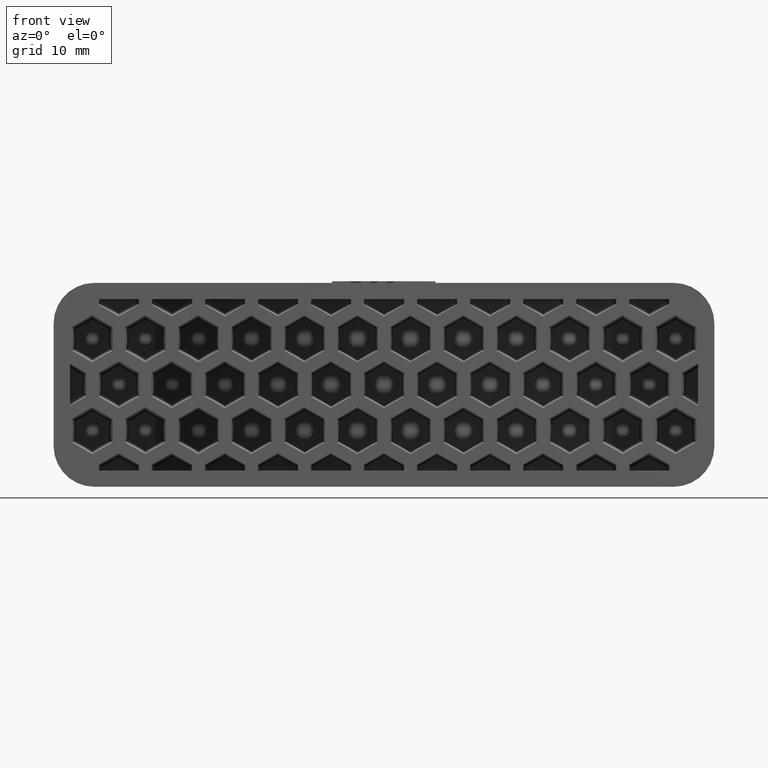
[diagram: clean part render]
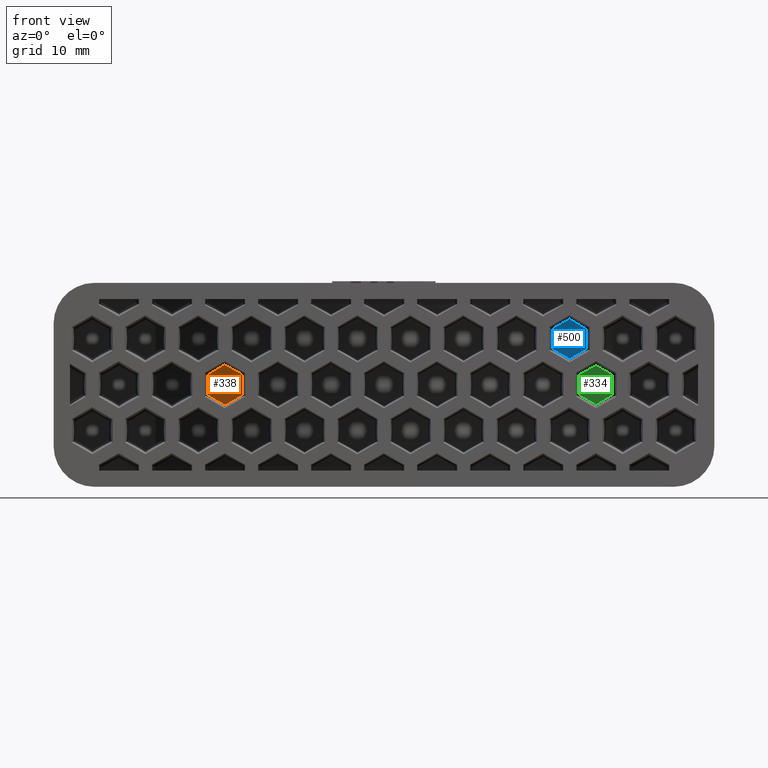
[diagram: same view with three faces highlighted in distinct colors, each labeled with its STEP entity id]
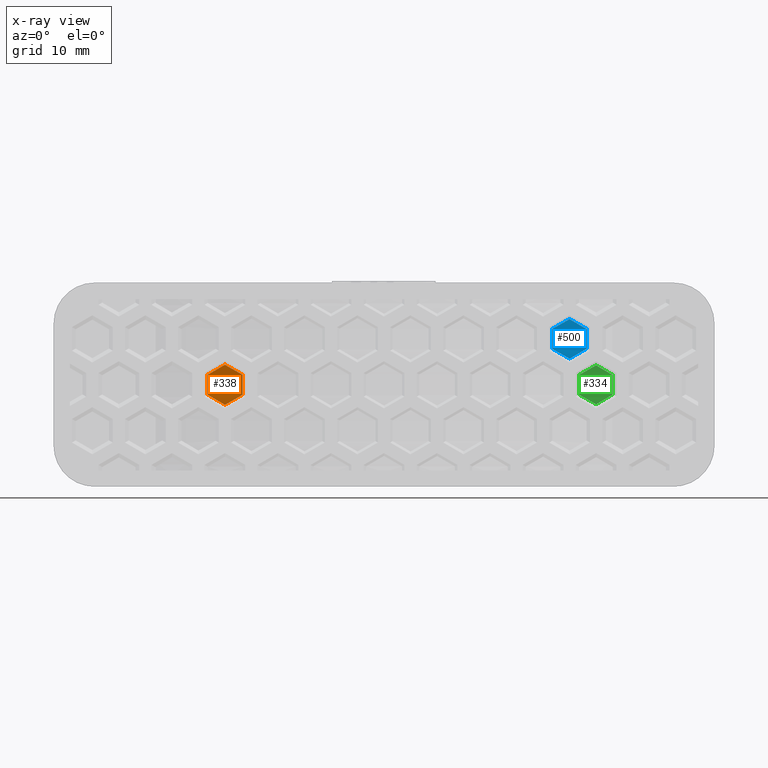
[diagram: x-ray of the same camera — body ghosted, the three highlighted faces saturated]
A machine part, front view with three faces highlighted in distinct colors.
The next image is the same camera in x-ray (body ghosted, the three faces saturated) — at least one of them is partly hidden behind the body in this view.
Their STEP definitions:

[orange] entity #338 — the highlighted cylindrical surface (partial cylindrical patch) has radius 48.05 mm, axis along (0, 0, -1).
#338 = ADVANCED_FACE( '', ( #1126 ), #1127, .T. );
#1126 = FACE_OUTER_BOUND( '', #2110, .T. );
#1127 = CYLINDRICAL_SURFACE( '', #2111, 48.0500000000000 );
#2110 = EDGE_LOOP( '', ( #4734, #4735, #4736, #4737, #4738, #4739 ) );
#2111 = AXIS2_PLACEMENT_3D( '', #4740, #4741, #4742 );
#4734 = ORIENTED_EDGE( '', *, *, #7014, .F. );
#4735 = ORIENTED_EDGE( '', *, *, #7012, .F. );
#4736 = ORIENTED_EDGE( '', *, *, #7010, .F. );
#4737 = ORIENTED_EDGE( '', *, *, #7008, .F. );
#4738 = ORIENTED_EDGE( '', *, *, #7006, .F. );
#4739 = ORIENTED_EDGE( '', *, *, #7003, .F. );
#4740 = CARTESIAN_POINT( '', ( 0.000000000000000, 65.0500000000000, -10.5000000000000 ) );
#4741 = DIRECTION( '', ( 0.000000000000000, 0.000000000000000, -1.00000000000000 ) );
#4742 = DIRECTION( '', ( -1.00000000000000, 6.93889390390723E-017, 0.000000000000000 ) );
#7003 = EDGE_CURVE( '', #8762, #8763, #8764, .T. );
#7006 = EDGE_CURVE( '', #8763, #8767, #8768, .T. );
#7008 = EDGE_CURVE( '', #8767, #8770, #8771, .T. );
#7010 = EDGE_CURVE( '', #8770, #8773, #8774, .T. );
#7012 = EDGE_CURVE( '', #8773, #8776, #8777, .T. );
#7014 = EDGE_CURVE( '', #8776, #8762, #8779, .F. );
#8762 = VERTEX_POINT( '', #11352 );
#8763 = VERTEX_POINT( '', #11353 );
#8764 = ELLIPSE( '', #11354, 55.4918125409537, 48.0500000000000 );
#8767 = VERTEX_POINT( '', #11359 );
#8768 = ELLIPSE( '', #11360, 55.4918125409537, 48.0500000000000 );
#8770 = VERTEX_POINT( '', #11363 );
#8771 = LINE( '', #11364, #11365 );
#8773 = VERTEX_POINT( '', #11368 );
#8774 = ELLIPSE( '', #11369, 55.4918125409537, 48.0500000000000 );
#8776 = VERTEX_POINT( '', #11372 );
#8777 = ELLIPSE( '', #11373, 55.4918125409537, 48.0500000000000 );
#8779 = LINE( '', #11376, #11377 );
#11352 = CARTESIAN_POINT( '', ( -17.3533435182737, 20.2430366043760, -1.23937269758235 ) );
#11353 = CARTESIAN_POINT( '', ( -19.5000000000000, 21.1347122291109, -2.46077334046903 ) );
#11354 = AXIS2_PLACEMENT_3D( '', #13255, #13256, #13257 );
#11359 = CARTESIAN_POINT( '', ( -21.6136233040047, 22.1355060885884, -1.22030098353262 ) );
#11360 = AXIS2_PLACEMENT_3D( '', #13260, #13261, #13262 );
#11363 = CARTESIAN_POINT( '', ( -21.6136233040047, 22.1355060885884, 1.22030098353259 ) );
#11364 = CARTESIAN_POINT( '', ( -21.6136233040047, 22.1355060885884, -10.5000000000000 ) );
#11365 = VECTOR( '', #13264, 1000.00000000000 );
#11368 = CARTESIAN_POINT( '', ( -19.5000000000000, 21.1347122291109, 2.46077334046903 ) );
#11369 = AXIS2_PLACEMENT_3D( '', #13266, #13267, #13268 );
#11372 = CARTESIAN_POINT( '', ( -17.3533435182737, 20.2430366043760, 1.23937269758236 ) );
#11373 = AXIS2_PLACEMENT_3D( '', #13270, #13271, #13272 );
#11376 = CARTESIAN_POINT( '', ( -17.3533435182737, 20.2430366043760, -10.5000000000000 ) );
#11377 = VECTOR( '', #13274, 1000.00000000000 );
#13255 = CARTESIAN_POINT( '', ( 0.000000000000000, 65.0500000000000, 9.68268590844681 ) );
#13256 = DIRECTION( '', ( 0.499923847578195, 0.0174524064372835, -0.865893503920754 ) );
#13257 = DIRECTION( '', ( 0.865366346075250, 0.0302100515148758, 0.500228387706894 ) );
#13260 = CARTESIAN_POINT( '', ( 0.000000000000000, 65.0500000000000, -12.8339745899486 ) );
#13261 = DIRECTION( '', ( -0.499923847578196, 0.0174524064372835, -0.865893503920754 ) );
#13262 = DIRECTION( '', ( -0.865366346075250, 0.0302100515148758, 0.500228387706895 ) );
#13264 = DIRECTION( '', ( 0.000000000000000, 0.000000000000000, 1.00000000000000 ) );
#13266 = CARTESIAN_POINT( '', ( 0.000000000000000, 65.0500000000000, 12.8339745899486 ) );
#13267 = DIRECTION( '', ( -0.499923847578195, 0.0174524064372835, 0.865893503920754 ) );
#13268 = DIRECTION( '', ( 0.865366346075250, -0.0302100515148758, 0.500228387706894 ) );
#13270 = CARTESIAN_POINT( '', ( 0.000000000000000, 65.0500000000000, -9.68268590844682 ) );
#13271 = DIRECTION( '', ( 0.499923847578196, 0.0174524064372835, 0.865893503920754 ) );
#13272 = DIRECTION( '', ( -0.865366346075250, -0.0302100515148758, 0.500228387706894 ) );
#13274 = DIRECTION( '', ( 0.000000000000000, 0.000000000000000, 1.00000000000000 ) );

[blue] entity #500 — the highlighted cylindrical surface (partial cylindrical patch) has radius 48.05 mm, axis along (0, 0, -1).
#500 = ADVANCED_FACE( '', ( #1450 ), #1451, .T. );
#1450 = FACE_OUTER_BOUND( '', #2434, .T. );
#1451 = CYLINDRICAL_SURFACE( '', #2435, 48.0500000000000 );
#2434 = EDGE_LOOP( '', ( #5931, #5932, #5933, #5934, #5935, #5936 ) );
#2435 = AXIS2_PLACEMENT_3D( '', #5937, #5938, #5939 );
#5931 = ORIENTED_EDGE( '', *, *, #6952, .F. );
#5932 = ORIENTED_EDGE( '', *, *, #6950, .F. );
#5933 = ORIENTED_EDGE( '', *, *, #6948, .F. );
#5934 = ORIENTED_EDGE( '', *, *, #6946, .F. );
#5935 = ORIENTED_EDGE( '', *, *, #6944, .F. );
#5936 = ORIENTED_EDGE( '', *, *, #6941, .F. );
#5937 = CARTESIAN_POINT( '', ( 0.000000000000000, 65.0500000000000, -10.5000000000000 ) );
#5938 = DIRECTION( '', ( 0.000000000000000, 0.000000000000000, -1.00000000000000 ) );
#5939 = DIRECTION( '', ( -1.00000000000000, 6.93889390390723E-017, 0.000000000000000 ) );
#6941 = EDGE_CURVE( '', #8668, #8669, #8670, .T. );
#6944 = EDGE_CURVE( '', #8669, #8673, #8674, .T. );
#6946 = EDGE_CURVE( '', #8673, #8676, #8677, .T. );
#6948 = EDGE_CURVE( '', #8676, #8679, #8680, .T. );
#6950 = EDGE_CURVE( '', #8679, #8682, #8683, .T. );
#6952 = EDGE_CURVE( '', #8682, #8668, #8685, .F. );
#8668 = VERTEX_POINT( '', #11216 );
#8669 = VERTEX_POINT( '', #11217 );
#8670 = ELLIPSE( '', #11218, 55.4918125409537, 48.0500000000000 );
#8673 = VERTEX_POINT( '', #11223 );
#8674 = ELLIPSE( '', #11224, 55.4918125409537, 48.0500000000000 );
#8676 = VERTEX_POINT( '', #11227 );
#8677 = LINE( '', #11228, #11229 );
#8679 = VERTEX_POINT( '', #11232 );
#8680 = ELLIPSE( '', #11233, 55.4918125409537, 48.0500000000000 );
#8682 = VERTEX_POINT( '', #11236 );
#8683 = ELLIPSE( '', #11237, 55.4918125409537, 48.0500000000000 );
#8685 = LINE( '', #11240, #11241 );
#11216 = CARTESIAN_POINT( '', ( 24.8325743275852, 23.9143007563387, 4.42679027596013 ) );
#11217 = CARTESIAN_POINT( '', ( 22.7500000000000, 22.7269566311684, 3.20048406375355 ) );
#11218 = AXIS2_PLACEMENT_3D( '', #13153, #13154, #13155 );
#11223 = CARTESIAN_POINT( '', ( 20.6279564710831, 21.6531117264486, 4.40400272194659 ) );
#11224 = AXIS2_PLACEMENT_3D( '', #13158, #13159, #13160 );
#11227 = CARTESIAN_POINT( '', ( 20.6279564710831, 21.6531117264486, 6.85432752725111 ) );
#11228 = CARTESIAN_POINT( '', ( 20.6279564710831, 21.6531117264486, -10.5000000000000 ) );
#11229 = VECTOR( '', #13162, 1000.00000000000 );
#11232 = CARTESIAN_POINT( '', ( 22.7500000000000, 22.7269566311684, 8.05784618544415 ) );
#11233 = AXIS2_PLACEMENT_3D( '', #13164, #13165, #13166 );
#11236 = CARTESIAN_POINT( '', ( 24.8325743275852, 23.9143007563387, 6.83153997323756 ) );
#11237 = AXIS2_PLACEMENT_3D( '', #13168, #13169, #13170 );
#11240 = CARTESIAN_POINT( '', ( 24.8325743275852, 23.9143007563387, -10.5000000000000 ) );
#11241 = VECTOR( '', #13172, 1000.00000000000 );
#13153 = CARTESIAN_POINT( '', ( 0.000000000000000, 65.0500000000000, -9.08119784021602 ) );
#13154 = DIRECTION( '', ( 0.499923847578195, 0.0174524064372835, -0.865893503920754 ) );
#13155 = DIRECTION( '', ( 0.865366346075250, 0.0302100515148758, 0.500228387706894 ) );
#13158 = CARTESIAN_POINT( '', ( 0.000000000000000, 65.0500000000000, 17.1882394079120 ) );
#13159 = DIRECTION( '', ( -0.499923847578196, 0.0174524064372835, -0.865893503920754 ) );
#13160 = DIRECTION( '', ( -0.865366346075250, 0.0302100515148758, 0.500228387706894 ) );
#13162 = DIRECTION( '', ( 0.000000000000000, 0.000000000000000, 1.00000000000000 ) );
#13164 = CARTESIAN_POINT( '', ( 0.000000000000000, 65.0500000000000, -5.92990915871427 ) );
#13165 = DIRECTION( '', ( -0.499923847578196, 0.0174524064372835, 0.865893503920754 ) );
#13166 = DIRECTION( '', ( 0.865366346075250, -0.0302100515148758, 0.500228387706895 ) );
#13168 = CARTESIAN_POINT( '', ( 0.000000000000000, 65.0500000000000, 20.3395280894137 ) );
#13169 = DIRECTION( '', ( 0.499923847578196, 0.0174524064372835, 0.865893503920754 ) );
#13170 = DIRECTION( '', ( -0.865366346075250, -0.0302100515148758, 0.500228387706895 ) );
#13172 = DIRECTION( '', ( 0.000000000000000, 0.000000000000000, 1.00000000000000 ) );

[green] entity #334 — the highlighted cylindrical surface (partial cylindrical patch) has radius 48.05 mm, axis along (0, 0, -1).
#334 = ADVANCED_FACE( '', ( #1118 ), #1119, .T. );
#1118 = FACE_OUTER_BOUND( '', #2102, .T. );
#1119 = CYLINDRICAL_SURFACE( '', #2103, 48.0500000000000 );
#2102 = EDGE_LOOP( '', ( #4704, #4705, #4706, #4707, #4708, #4709 ) );
#2103 = AXIS2_PLACEMENT_3D( '', #4710, #4711, #4712 );
#4704 = ORIENTED_EDGE( '', *, *, #7051, .F. );
#4705 = ORIENTED_EDGE( '', *, *, #7047, .F. );
#4706 = ORIENTED_EDGE( '', *, *, #7045, .F. );
#4707 = ORIENTED_EDGE( '', *, *, #7043, .F. );
#4708 = ORIENTED_EDGE( '', *, *, #7040, .F. );
#4709 = ORIENTED_EDGE( '', *, *, #7105, .T. );
#4710 = CARTESIAN_POINT( '', ( 0.000000000000000, 65.0500000000000, -10.5000000000000 ) );
#4711 = DIRECTION( '', ( 0.000000000000000, 0.000000000000000, -1.00000000000000 ) );
#4712 = DIRECTION( '', ( -1.00000000000000, 6.93889390390723E-017, 0.000000000000000 ) );
#7040 = EDGE_CURVE( '', #8817, #8819, #8820, .T. );
#7043 = EDGE_CURVE( '', #8819, #8823, #8824, .T. );
#7045 = EDGE_CURVE( '', #8823, #8826, #8827, .T. );
#7047 = EDGE_CURVE( '', #8826, #8829, #8830, .T. );
#7051 = EDGE_CURVE( '', #8829, #8832, #8836, .T. );
#7105 = EDGE_CURVE( '', #8817, #8832, #8911, .T. );
#8817 = VERTEX_POINT( '', #11431 );
#8819 = VERTEX_POINT( '', #11434 );
#8820 = ELLIPSE( '', #11435, 55.4918125409537, 48.0500000000000 );
#8823 = VERTEX_POINT( '', #11440 );
#8824 = ELLIPSE( '', #11441, 55.4918125409537, 48.0500000000000 );
#8826 = VERTEX_POINT( '', #11444 );
#8827 = LINE( '', #11445, #11446 );
#8829 = VERTEX_POINT( '', #11449 );
#8830 = ELLIPSE( '', #11450, 55.4918125409537, 48.0500000000000 );
#8832 = VERTEX_POINT( '', #11453 );
#8836 = ELLIPSE( '', #11459, 55.4918125409537, 48.0500000000000 );
#8911 = LINE( '', #11569, #11570 );
#11431 = CARTESIAN_POINT( '', ( 27.9982142287682, 26.0000000000000, -1.20904212844876 ) );
#11434 = CARTESIAN_POINT( '', ( 26.0000000000000, 24.6420490497229, -2.39008165906872 ) );
#11435 = AXIS2_PLACEMENT_3D( '', #13316, #13317, #13318 );
#11440 = CARTESIAN_POINT( '', ( 23.9079267226404, 23.3701062882250, -1.20785906984805 ) );
#11441 = AXIS2_PLACEMENT_3D( '', #13321, #13322, #13323 );
#11444 = CARTESIAN_POINT( '', ( 23.9079267226403, 23.3701062882250, 1.20785906984804 ) );
#11445 = CARTESIAN_POINT( '', ( 23.9079267226403, 23.3701062882250, -10.5000000000000 ) );
#11446 = VECTOR( '', #13325, 1000.00000000000 );
#11449 = CARTESIAN_POINT( '', ( 26.0000000000000, 24.6420490497229, 2.39008165906871 ) );
#11450 = AXIS2_PLACEMENT_3D( '', #13327, #13328, #13329 );
#11453 = CARTESIAN_POINT( '', ( 27.9982142287682, 26.0000000000000, 1.20904212844876 ) );
#11459 = AXIS2_PLACEMENT_3D( '', #13333, #13334, #13335 );
#11569 = CARTESIAN_POINT( '', ( 27.9982142287682, 26.0000000000000, -10.5000000000000 ) );
#11570 = VECTOR( '', #13425, 1000.00000000000 );
#13316 = CARTESIAN_POINT( '', ( 0.000000000000000, 65.0500000000000, -16.5867513396811 ) );
#13317 = DIRECTION( '', ( 0.499923847578195, 0.0174524064372835, -0.865893503920754 ) );
#13318 = DIRECTION( '', ( 0.865366346075250, 0.0302100515148758, 0.500228387706894 ) );
#13321 = CARTESIAN_POINT( '', ( 0.000000000000000, 65.0500000000000, 13.4354626581794 ) );
#13322 = DIRECTION( '', ( -0.499923847578196, 0.0174524064372835, -0.865893503920754 ) );
#13323 = DIRECTION( '', ( -0.865366346075250, 0.0302100515148758, 0.500228387706895 ) );
#13325 = DIRECTION( '', ( 0.000000000000000, 0.000000000000000, 1.00000000000000 ) );
#13327 = CARTESIAN_POINT( '', ( 0.000000000000000, 65.0500000000000, -13.4354626581794 ) );
#13328 = DIRECTION( '', ( -0.499923847578195, 0.0174524064372835, 0.865893503920754 ) );
#13329 = DIRECTION( '', ( 0.865366346075250, -0.0302100515148758, 0.500228387706894 ) );
#13333 = CARTESIAN_POINT( '', ( 0.000000000000000, 65.0500000000000, 16.5867513396812 ) );
#13334 = DIRECTION( '', ( 0.499923847578196, 0.0174524064372835, 0.865893503920754 ) );
#13335 = DIRECTION( '', ( -0.865366346075250, -0.0302100515148758, 0.500228387706894 ) );
#13425 = DIRECTION( '', ( 0.000000000000000, 0.000000000000000, 1.00000000000000 ) );